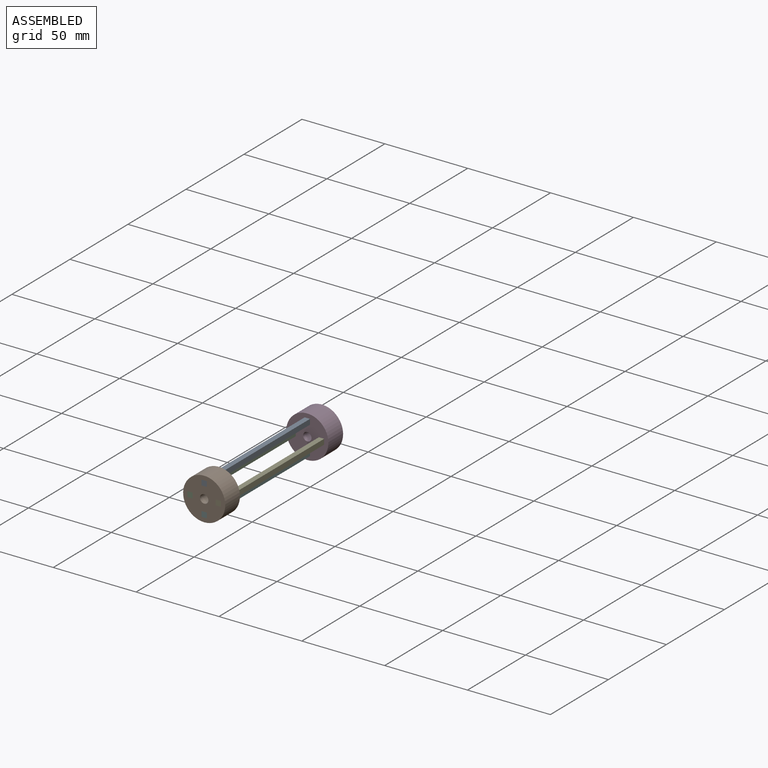
[diagram: assembled view]
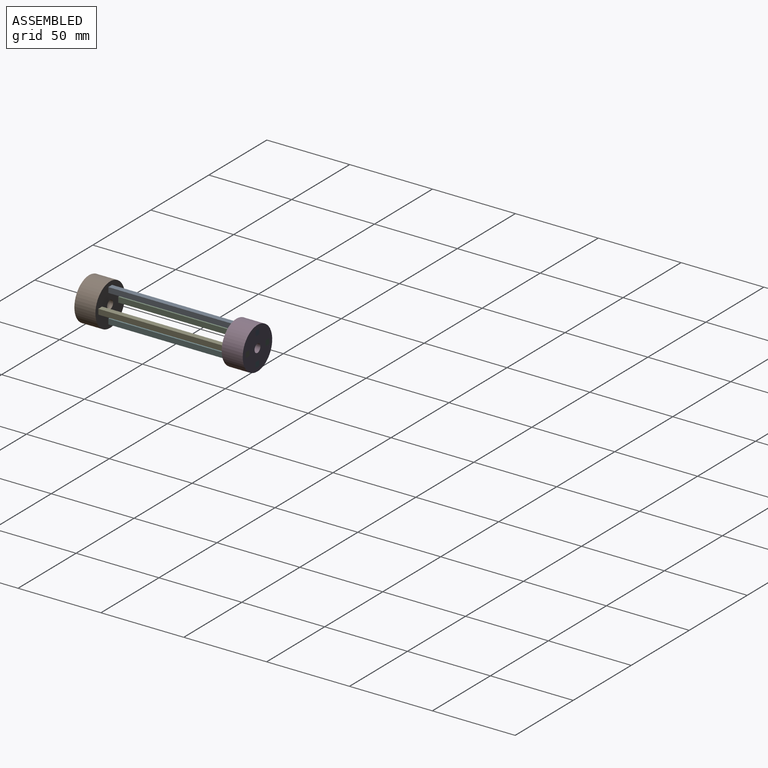
[diagram: assembled view, second angle]
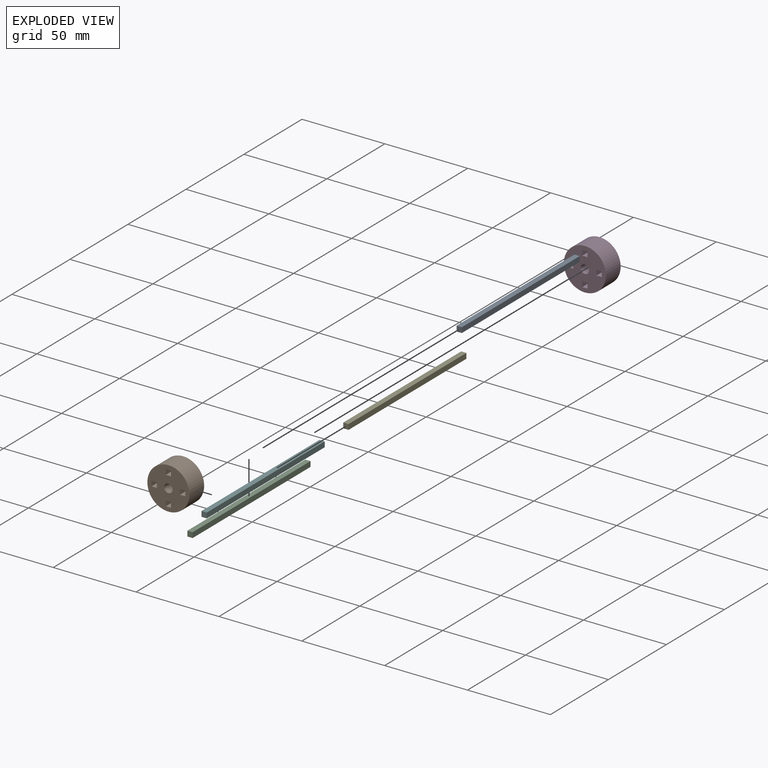
[diagram: exploded view]
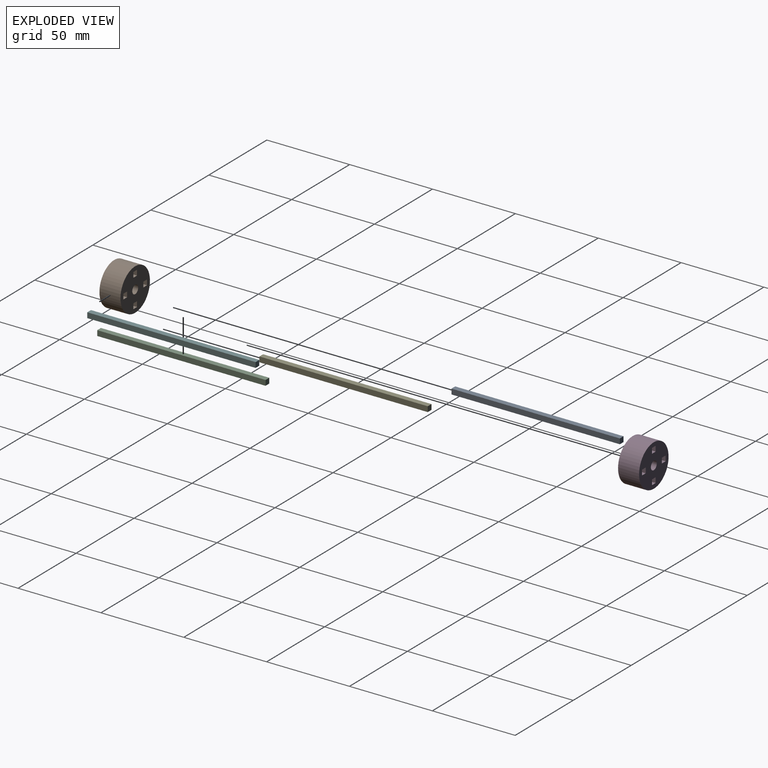
[diagram: exploded view, second angle]
ASSEMBLY  parts=6 mates=5
PART A: 6 faces, bbox 3.2x101.6x3.2 mm
  f0: plane 101.6x3.18mm, normal (0,0,1), area 322.6mm2, adj f1,f3,f4,f5
  f1: plane 101.6x3.18mm, normal (-1,0,0), area 322.6mm2, adj f0,f2,f4,f5
  f2: plane 101.6x3.18mm, normal (0,0,-1), area 322.6mm2, adj f1,f3,f4,f5
  f3: plane 101.6x3.18mm, normal (1,0,0), area 322.6mm2, adj f0,f2,f4,f5
  f4: plane 3.18x3.18mm, normal (0,-1,0), area 10.1mm2, adj f0,f1,f2,f3
  f5: plane 3.18x3.18mm, normal (0,1,0), area 10.1mm2, adj f0,f1,f2,f3
PART B: 20 faces, bbox 25.4x12.7x25.4 mm
  f0: plane 25.4x25.4mm, normal (0,-1,0), area 446.1mm2, adj f2,f3,f4,f5,f6,f7,f8,f9
  f1: plane 25.4x25.4mm, normal (0,1,0), area 446.1mm2, adj f2,f3,f4,f5,f6,f7,f8,f9
  f2: cylinder r=12.7mm len=25.4mm, axis (0,1,0), area 1013.4mm2, adj f0,f1
  f3: plane 12.7x3.18mm, normal (0,0,-1), area 40.3mm2, adj f0,f1,f4,f6
  f4: plane 12.7x3.18mm, normal (1,0,0), area 40.3mm2, adj f0,f1,f3,f5
  f5: plane 12.7x3.18mm, normal (0,0,1), area 40.3mm2, adj f0,f1,f4,f6
  f6: plane 12.7x3.18mm, normal (-1,0,0), area 40.3mm2, adj f0,f1,f3,f5
  f7: plane 12.7x3.18mm, normal (0,0,-1), area 40.3mm2, adj f0,f1,f8,f10
  f8: plane 12.7x3.18mm, normal (1,0,0), area 40.3mm2, adj f0,f1,f7,f9
  f9: plane 12.7x3.18mm, normal (0,0,1), area 40.3mm2, adj f0,f1,f8,f10
  f10: plane 12.7x3.18mm, normal (-1,0,0), area 40.3mm2, adj f0,f1,f7,f9
  f11: plane 12.7x3.18mm, normal (0,0,-1), area 40.3mm2, adj f0,f1,f12,f14
  f12: plane 12.7x3.18mm, normal (1,0,0), area 40.3mm2, adj f0,f1,f11,f13
  f13: plane 12.7x3.18mm, normal (0,0,1), area 40.3mm2, adj f0,f1,f12,f14
  f14: plane 12.7x3.18mm, normal (-1,0,0), area 40.3mm2, adj f0,f1,f11,f13
  f15: plane 12.7x3.18mm, normal (0,0,-1), area 40.3mm2, adj f0,f1,f16,f18
  f16: plane 12.7x3.18mm, normal (1,0,0), area 40.3mm2, adj f0,f1,f15,f17
  f17: plane 12.7x3.18mm, normal (0,0,1), area 40.3mm2, adj f0,f1,f16,f18
  f18: plane 12.7x3.18mm, normal (-1,0,0), area 40.3mm2, adj f0,f1,f15,f17
  f19: cylinder r=2.54mm len=12.7mm, axis (0,-1,0), area 202.7mm2, adj f0,f1
PART C: same geometry as A
PART D: same geometry as B
PART E: same geometry as A
PART F: same geometry as A
PLACE A t=(-55.67,66.43,13.68)mm
PLACE B t=(-54.3,-22.47,3.79)mm
PLACE C t=(-64.25,66.43,5.11)mm
PLACE D t=(-54.3,66.43,3.79)mm
PLACE E t=(-47.1,66.43,5.11)mm
PLACE F t=(-55.67,66.43,-3.47)mm
MATE fastened D.f1 <-> E.f5  axis (0,1,0) through (-47.32,66.43,3.79)mm
MATE fastened F.f4 <-> B.f0  axis (0,-1,0) through (-54.3,-35.17,-4.78)mm
MATE fastened C.f4 <-> B.f0  axis (0,-1,0) through (-62.87,-35.17,3.79)mm
MATE fastened E.f4 <-> B.f0  axis (0,-1,0) through (-45.73,-35.17,3.79)mm
MATE fastened A.f4 <-> B.f0  axis (0,-1,0) through (-54.3,-35.17,12.36)mm
